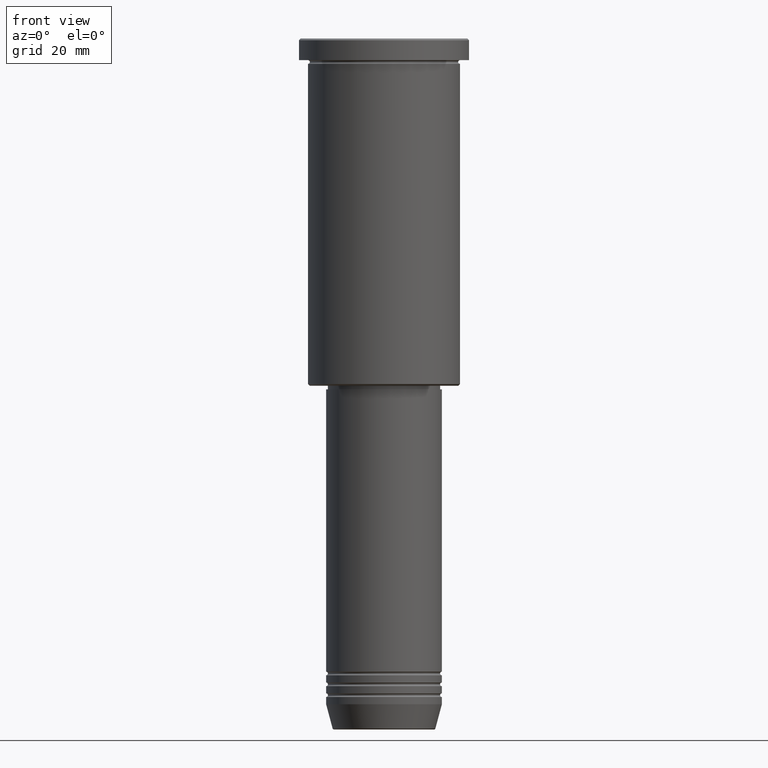
[diagram: clean part render]
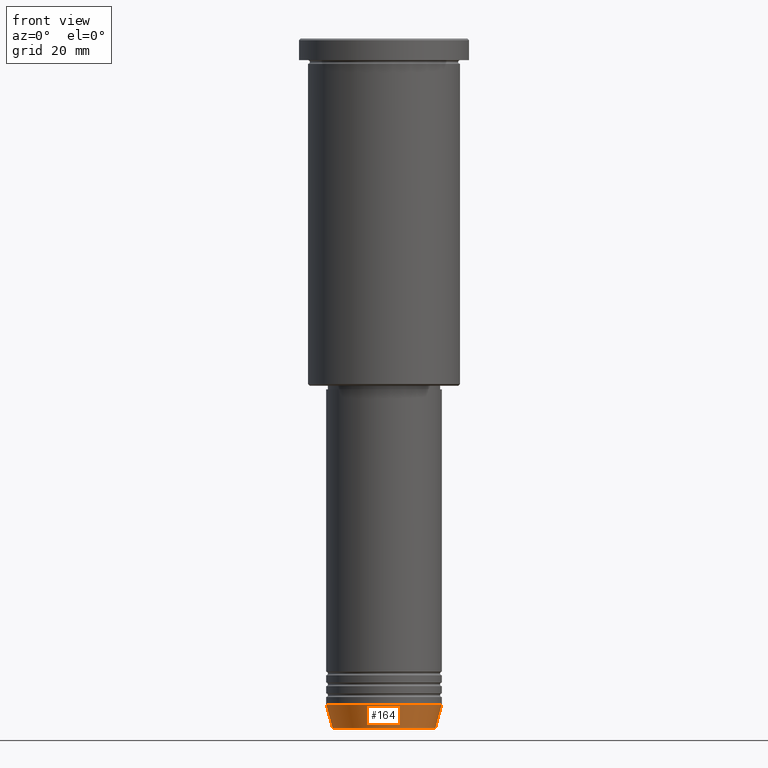
[diagram: same view with one face highlighted and labeled with its STEP entity id]
A machine part, front view. The second image highlights one B-rep face of the part: STEP entity #164.
In plain terms, the highlighted conical surface has half-angle 15 deg.
Its self-contained STEP definition (entity closure, byte-faithful):
#7 = VECTOR ( 'NONE', #693, 1000.000000000000000 ) ;
#8 = EDGE_CURVE ( 'NONE', #112, #165, #520, .T. ) ;
#15 = CARTESIAN_POINT ( 'NONE',  ( 14.22365507213719660, 0.000000000000000000, -190.6294095225512706 ) ) ;
#54 = DIRECTION ( 'NONE',  ( -0.2588190451025213501, 3.169619151431772337E-17, 0.9659258262890680902 ) ) ;
#67 = CONICAL_SURFACE ( 'NONE', #1033, 16.00000000000000000, 0.2617993877991500740 ) ;
#91 = VECTOR ( 'NONE', #54, 1000.000000000000000 ) ;
#112 = VERTEX_POINT ( 'NONE', #15 ) ;
#122 = CARTESIAN_POINT ( 'NONE',  ( -16.00000000000000000, 1.959434878635765131E-15, -184.0000000000000284 ) ) ;
#140 = VERTEX_POINT ( 'NONE', #933 ) ;
#164 = ADVANCED_FACE ( 'NONE', ( #666 ), #67, .T. ) ;
#165 = VERTEX_POINT ( 'NONE', #955 ) ;
#170 = AXIS2_PLACEMENT_3D ( 'NONE', #951, #480, #845 ) ;
#202 = CARTESIAN_POINT ( 'NONE',  ( 0.000000000000000000, 0.000000000000000000, -184.0000000000000284 ) ) ;
#216 = DIRECTION ( 'NONE',  ( -0.000000000000000000, -0.000000000000000000, 1.000000000000000000 ) ) ;
#225 = DIRECTION ( 'NONE',  ( 1.000000000000000000, 0.000000000000000000, 0.000000000000000000 ) ) ;
#256 = CARTESIAN_POINT ( 'NONE',  ( 16.00000000000000000, 0.000000000000000000, -184.0000000000000284 ) ) ;
#289 = ORIENTED_EDGE ( 'NONE', *, *, #8, .T. ) ;
#355 = ORIENTED_EDGE ( 'NONE', *, *, #770, .T. ) ;
#368 = EDGE_LOOP ( 'NONE', ( #953, #355, #289, #787 ) ) ;
#480 = DIRECTION ( 'NONE',  ( -0.000000000000000000, -0.000000000000000000, 1.000000000000000000 ) ) ;
#520 = LINE ( 'NONE', #256, #7 ) ;
#534 = VERTEX_POINT ( 'NONE', #743 ) ;
#555 = EDGE_CURVE ( 'NONE', #140, #165, #1095, .T. ) ;
#666 = FACE_OUTER_BOUND ( 'NONE', #368, .T. ) ;
#693 = DIRECTION ( 'NONE',  ( 0.2588190451025213501, 0.000000000000000000, 0.9659258262890680902 ) ) ;
#743 = CARTESIAN_POINT ( 'NONE',  ( -14.22365507213719660, 1.850665122131324126E-15, -190.6294095225512706 ) ) ;
#770 = EDGE_CURVE ( 'NONE', #534, #112, #1177, .T. ) ;
#787 = ORIENTED_EDGE ( 'NONE', *, *, #555, .F. ) ;
#829 = CARTESIAN_POINT ( 'NONE',  ( 0.000000000000000000, 0.000000000000000000, -184.0000000000000284 ) ) ;
#845 = DIRECTION ( 'NONE',  ( 1.000000000000000000, 0.000000000000000000, 0.000000000000000000 ) ) ;
#865 = LINE ( 'NONE', #122, #91 ) ;
#933 = CARTESIAN_POINT ( 'NONE',  ( -16.00000000000000000, 1.959434878635765131E-15, -184.0000000000000284 ) ) ;
#942 = EDGE_CURVE ( 'NONE', #534, #140, #865, .T. ) ;
#951 = CARTESIAN_POINT ( 'NONE',  ( 0.000000000000000000, 0.000000000000000000, -190.6294095225512706 ) ) ;
#953 = ORIENTED_EDGE ( 'NONE', *, *, #942, .F. ) ;
#955 = CARTESIAN_POINT ( 'NONE',  ( 16.00000000000000000, 0.000000000000000000, -184.0000000000000284 ) ) ;
#1011 = DIRECTION ( 'NONE',  ( -0.000000000000000000, -0.000000000000000000, 1.000000000000000000 ) ) ;
#1033 = AXIS2_PLACEMENT_3D ( 'NONE', #202, #216, #225 ) ;
#1095 = CIRCLE ( 'NONE', #1156, 16.00000000000000000 ) ;
#1108 = DIRECTION ( 'NONE',  ( 1.000000000000000000, 0.000000000000000000, 0.000000000000000000 ) ) ;
#1156 = AXIS2_PLACEMENT_3D ( 'NONE', #829, #1011, #1108 ) ;
#1177 = CIRCLE ( 'NONE', #170, 14.22365507213719660 ) ;